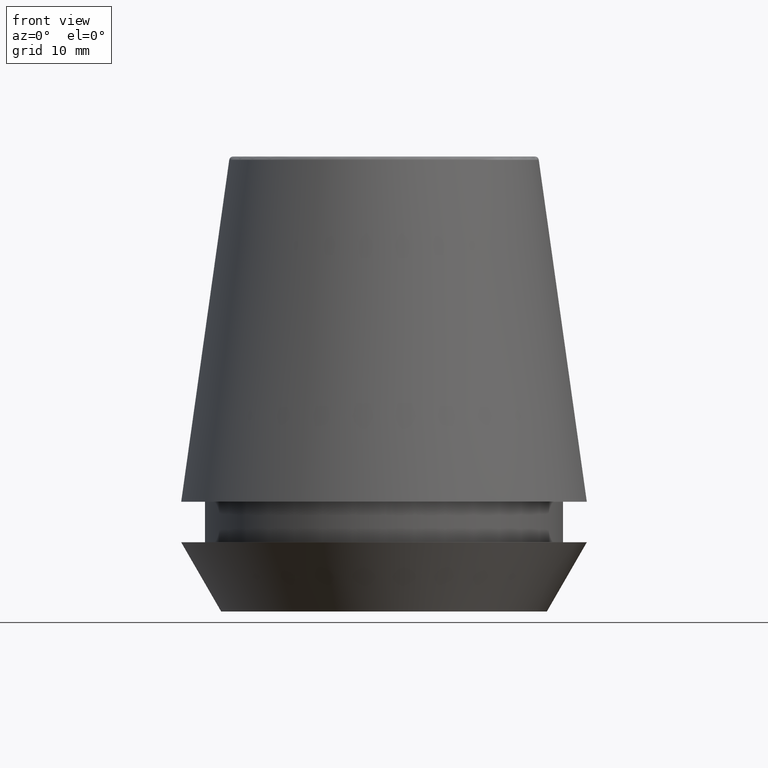
[diagram: clean part render]
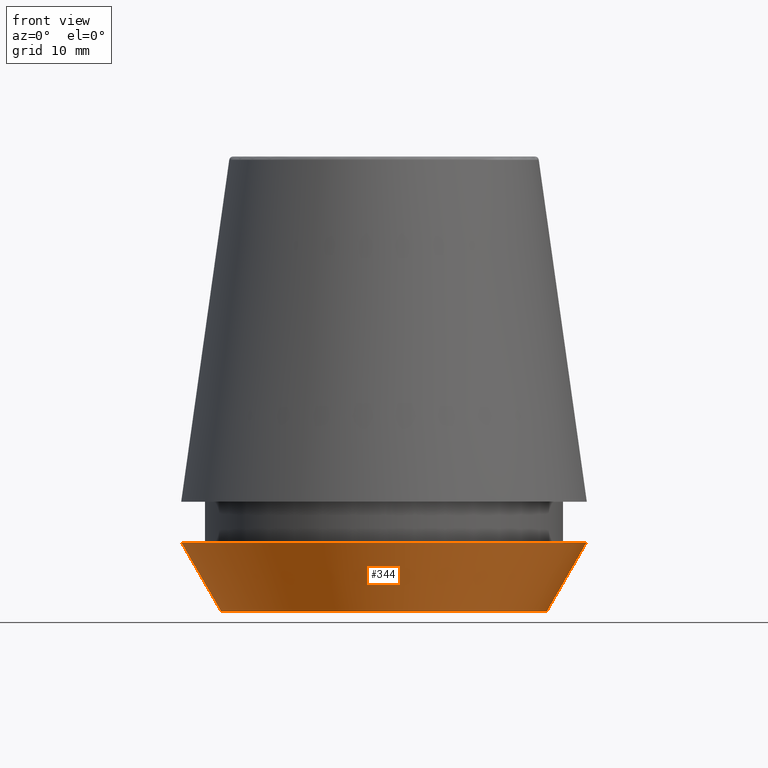
[diagram: same view with one face highlighted and labeled with its STEP entity id]
A machine part, front view. The second image highlights one B-rep face of the part: STEP entity #344.
In plain terms, the highlighted conical surface has half-angle 30 deg.
Its self-contained STEP definition (entity closure, byte-faithful):
#8 = CARTESIAN_POINT ( 'NONE',  ( 0.0000000000000000000, 0.0000000000000000000, 0.0000000000000000000 ) ) ;
#13 = DIRECTION ( 'NONE',  ( -0.4999999999999941700, 6.123233995736694500E-017, 0.8660254037844420400 ) ) ;
#20 = CARTESIAN_POINT ( 'NONE',  ( 0.0000000000000000000, 0.0000000000000000000, 7.000000000000006200 ) ) ;
#27 = ORIENTED_EDGE ( 'NONE', *, *, #232, .F. ) ;
#40 = CARTESIAN_POINT ( 'NONE',  ( 0.0000000000000000000, 0.0000000000000000000, 0.0000000000000000000 ) ) ;
#52 = CARTESIAN_POINT ( 'NONE',  ( -16.45854811567268100, 2.263058382549599700E-015, 0.0000000000000000000 ) ) ;
#66 = CARTESIAN_POINT ( 'NONE',  ( -20.50000000000000000, 2.510525938252074100E-015, 7.000000000000006200 ) ) ;
#82 = ORIENTED_EDGE ( 'NONE', *, *, #139, .F. ) ;
#90 = AXIS2_PLACEMENT_3D ( 'NONE', #8, #269, #367 ) ;
#111 = VERTEX_POINT ( 'NONE', #258 ) ;
#116 = VERTEX_POINT ( 'NONE', #52 ) ;
#126 = EDGE_CURVE ( 'NONE', #116, #111, #352, .T. ) ;
#135 = AXIS2_PLACEMENT_3D ( 'NONE', #20, #171, #373 ) ;
#139 = EDGE_CURVE ( 'NONE', #116, #162, #369, .T. ) ;
#146 = CARTESIAN_POINT ( 'NONE',  ( -16.45854811567268100, 2.015590826847124800E-015, 0.0000000000000000000 ) ) ;
#148 = ORIENTED_EDGE ( 'NONE', *, *, #311, .T. ) ;
#151 = VERTEX_POINT ( 'NONE', #155 ) ;
#155 = CARTESIAN_POINT ( 'NONE',  ( 20.50000000000000000, 0.0000000000000000000, 7.000000000000006200 ) ) ;
#162 = VERTEX_POINT ( 'NONE', #66 ) ;
#167 = EDGE_LOOP ( 'NONE', ( #82, #365, #148, #27 ) ) ;
#171 = DIRECTION ( 'NONE',  ( -0.0000000000000000000, -0.0000000000000000000, 1.000000000000000000 ) ) ;
#194 = DIRECTION ( 'NONE',  ( 1.000000000000000000, 0.0000000000000000000, 0.0000000000000000000 ) ) ;
#232 = EDGE_CURVE ( 'NONE', #162, #151, #341, .T. ) ;
#237 = CARTESIAN_POINT ( 'NONE',  ( 16.45854811567268100, 0.0000000000000000000, 0.0000000000000000000 ) ) ;
#258 = CARTESIAN_POINT ( 'NONE',  ( 16.45854811567268100, 0.0000000000000000000, 0.0000000000000000000 ) ) ;
#263 = CONICAL_SURFACE ( 'NONE', #90, 16.45854811567268100, 0.5235987755982921500 ) ;
#269 = DIRECTION ( 'NONE',  ( -0.0000000000000000000, -0.0000000000000000000, 1.000000000000000000 ) ) ;
#288 = DIRECTION ( 'NONE',  ( 0.4999999999999941700, 0.0000000000000000000, 0.8660254037844420400 ) ) ;
#302 = FACE_OUTER_BOUND ( 'NONE', #167, .T. ) ;
#304 = VECTOR ( 'NONE', #288, 1000.000000000000000 ) ;
#311 = EDGE_CURVE ( 'NONE', #111, #151, #319, .T. ) ;
#319 = LINE ( 'NONE', #237, #304 ) ;
#332 = DIRECTION ( 'NONE',  ( -0.0000000000000000000, -0.0000000000000000000, 1.000000000000000000 ) ) ;
#341 = CIRCLE ( 'NONE', #135, 20.50000000000000000 ) ;
#344 = ADVANCED_FACE ( 'NONE', ( #302 ), #263, .T. ) ;
#347 = AXIS2_PLACEMENT_3D ( 'NONE', #40, #332, #194 ) ;
#352 = CIRCLE ( 'NONE', #347, 16.45854811567268100 ) ;
#365 = ORIENTED_EDGE ( 'NONE', *, *, #126, .T. ) ;
#367 = DIRECTION ( 'NONE',  ( 1.000000000000000000, 0.0000000000000000000, 0.0000000000000000000 ) ) ;
#368 = VECTOR ( 'NONE', #13, 1000.000000000000000 ) ;
#369 = LINE ( 'NONE', #146, #368 ) ;
#373 = DIRECTION ( 'NONE',  ( 1.000000000000000000, 0.0000000000000000000, 0.0000000000000000000 ) ) ;